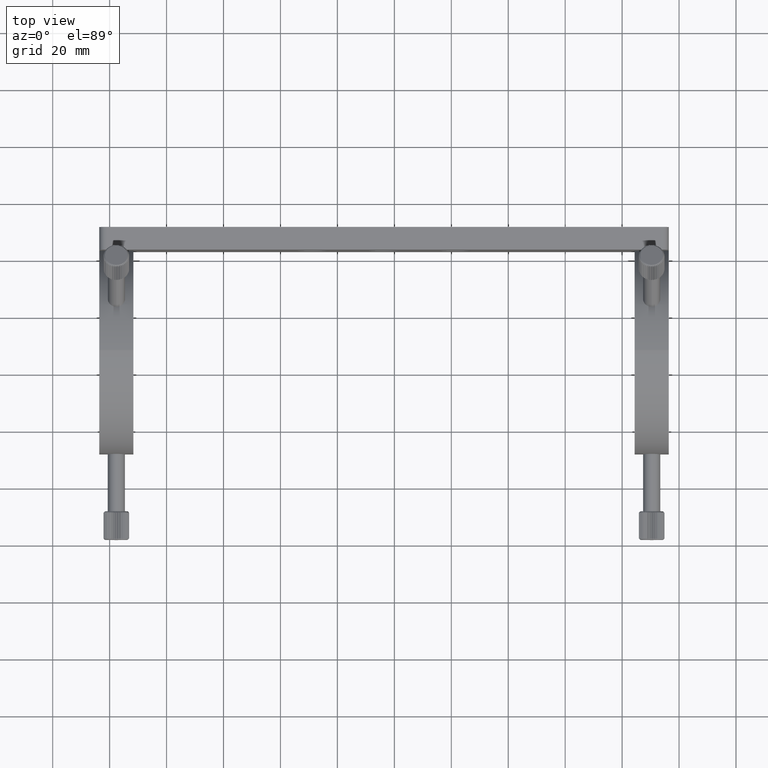
[diagram: clean part render]
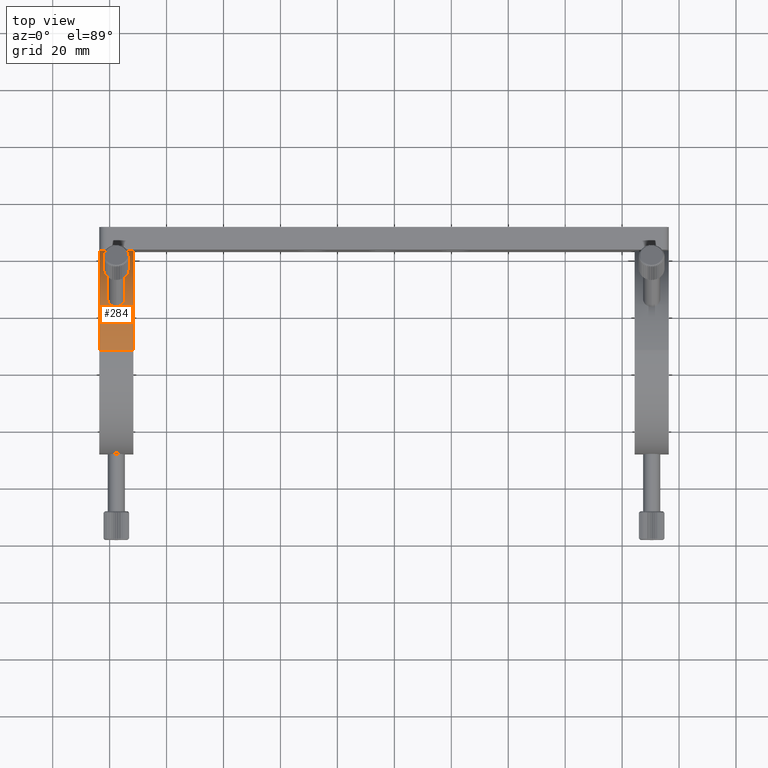
[diagram: same view with one face highlighted and labeled with its STEP entity id]
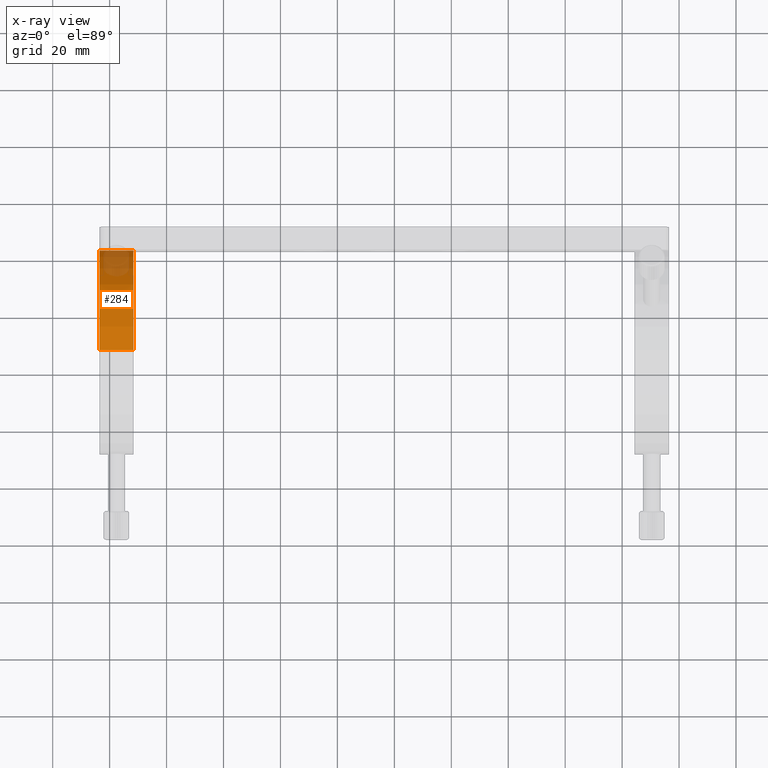
[diagram: x-ray of the same camera — body ghosted, the highlighted face saturated]
A machine part, top view. The second image highlights one B-rep face of the part: STEP entity #284.
The next image is the same camera in x-ray: the body ghosted, the highlighted face saturated — about 19% of this face is hidden behind the body in this view.
In plain terms, the highlighted cylindrical surface (partial cylindrical patch) has radius 36 mm, axis along (1, 0, 0).
Its self-contained STEP definition (entity closure, byte-faithful):
#27 = CARTESIAN_POINT ( 'NONE',  ( -99.16896891629421900, -36.67181555578088100, 32.12909060286512600 ) ) ;
#135 = CARTESIAN_POINT ( 'NONE',  ( -99.87901667800481700, -35.88279715201265000, 31.71744782722568700 ) ) ;
#284 = ADVANCED_FACE ( 'NONE', ( #27697, #623 ), #30093, .T. ) ;
#366 = CARTESIAN_POINT ( 'NONE',  ( -99.51730945327534500, -33.50189322311839400, 30.31870572878108000 ) ) ;
#472 = CARTESIAN_POINT ( 'NONE',  ( -97.96345351327534000, -32.79134963972862200, 29.85164786631104400 ) ) ;
#532 = CARTESIAN_POINT ( 'NONE',  ( -95.21313028103988100, -35.47739396892873000, 31.49645733387829000 ) ) ;
#623 = FACE_OUTER_BOUND ( 'NONE', #17009, .T. ) ;
#649 = CARTESIAN_POINT ( 'NONE',  ( -96.10885848674645600, -33.21842257860203100, 30.13525405787644500 ) ) ;
#756 = CARTESIAN_POINT ( 'NONE',  ( -95.38584691836011600, -33.96220236134243500, 30.60868353116871500 ) ) ;
#1281 = CIRCLE ( 'NONE', #18355, 36.00000000000002800 ) ;
#2262 = VERTEX_POINT ( 'NONE', #26188 ) ;
#2479 = CARTESIAN_POINT ( 'NONE',  ( -97.63306085376936500, -37.12147665865081300, 32.35164786631097700 ) ) ;
#2503 = EDGE_CURVE ( 'NONE', #32010, #2849, #26023, .T. ) ;
#2706 = CARTESIAN_POINT ( 'NONE',  ( -100.0528725425936200, -35.47765903757490200, 31.49660119721448800 ) ) ;
#2849 = VERTEX_POINT ( 'NONE', #23191 ) ;
#2937 = CARTESIAN_POINT ( 'NONE',  ( -99.80385553234168600, -33.84054108198556300, 30.53295588438157500 ) ) ;
#2998 = CARTESIAN_POINT ( 'NONE',  ( -95.46347066704218800, -33.83864005476746700, 30.53177199441088900 ) ) ;
#3113 = CARTESIAN_POINT ( 'NONE',  ( -95.26036527281650000, -35.61397444602200600, 31.57163443884389400 ) ) ;
#3150 = CARTESIAN_POINT ( 'NONE',  ( -103.6330608537693800, -17.41295791704509100, 5.979130371550706300 ) ) ;
#3624 = ORIENTED_EDGE ( 'NONE', *, *, #11283, .T. ) ;
#4146 = ORIENTED_EDGE ( 'NONE', *, *, #8931, .T. ) ;
#4505 = DIRECTION ( 'NONE',  ( -1.000000000000000000, -3.227553289772365600E-016, -6.245004513516485800E-017 ) ) ;
#4878 = AXIS2_PLACEMENT_3D ( 'NONE', #11987, #4505, #14756 ) ;
#5495 = CARTESIAN_POINT ( 'NONE',  ( -95.64622452386085200, -33.60722197214347100, 30.38597147789798600 ) ) ;
#5598 = CARTESIAN_POINT ( 'NONE',  ( -95.26117585971856300, -34.21874536891541400, 30.76603745769975300 ) ) ;
#5707 = CARTESIAN_POINT ( 'NONE',  ( -97.30536365340624600, -32.80482696407320700, 29.86074486290415200 ) ) ;
#5824 = CARTESIAN_POINT ( 'NONE',  ( -95.74969305111353900, -33.50104941048486800, 30.31816515016392100 ) ) ;
#6537 = AXIS2_PLACEMENT_3D ( 'NONE', #23517, #31302, #8452 ) ;
#7094 = EDGE_CURVE ( 'NONE', #13643, #8117, #1281, .T. ) ;
#7665 = CARTESIAN_POINT ( 'NONE',  ( -98.28077755211887700, -37.04964642817338900, 32.31650315495970500 ) ) ;
#7866 = CIRCLE ( 'NONE', #4878, 36.00000000000002800 ) ;
#8009 = CARTESIAN_POINT ( 'NONE',  ( -99.62277687329510900, -33.61050104639391400, 30.38805090367765500 ) ) ;
#8073 = CARTESIAN_POINT ( 'NONE',  ( -97.63306085376936500, -32.79134963972861500, 29.85164786631103700 ) ) ;
#8117 = VERTEX_POINT ( 'NONE', #8531 ) ;
#8297 = CARTESIAN_POINT ( 'NONE',  ( -95.98023987858182700, -33.30698435964775000, 30.19303116294083000 ) ) ;
#8347 = CARTESIAN_POINT ( 'NONE',  ( -98.88833704406852100, -33.06783110732094900, 30.03630009003354600 ) ) ;
#8411 = CARTESIAN_POINT ( 'NONE',  ( -97.46987347511429800, -37.12147665865082000, 32.35164786631098400 ) ) ;
#8452 = DIRECTION ( 'NONE',  ( 0.0000000000000000000, 5.782411586589352700E-016, 1.000000000000000000 ) ) ;
#8531 = CARTESIAN_POINT ( 'NONE',  ( -103.6330608537693800, -17.41295791704509100, 5.979130371550706300 ) ) ;
#8931 = EDGE_CURVE ( 'NONE', #2849, #32010, #17608, .T. ) ;
#9909 = CARTESIAN_POINT ( 'NONE',  ( -100.1166240872301800, -35.19874294107056300, 31.34058266493758900 ) ) ;
#10568 = CARTESIAN_POINT ( 'NONE',  ( -100.0059140575323100, -34.22098089571600400, 30.76740114733139800 ) ) ;
#10608 = VECTOR ( 'NONE', #15967, 1000.000000000000000 ) ;
#10632 = CARTESIAN_POINT ( 'NONE',  ( -95.14927122559410600, -35.19749601746829600, 31.33988073458980500 ) ) ;
#10746 = CARTESIAN_POINT ( 'NONE',  ( -95.13300255412552500, -35.05344038381137000, 31.25802680114832200 ) ) ;
#10846 = CARTESIAN_POINT ( 'NONE',  ( -95.98161942359463700, -36.56924513870474400, 32.07641986271804800 ) ) ;
#10891 = CARTESIAN_POINT ( 'NONE',  ( -98.29168566677360300, -32.84649554215096100, 29.88900737038749300 ) ) ;
#10948 = CARTESIAN_POINT ( 'NONE',  ( -97.46782652528610000, -32.79134963972861500, 29.85164786631103000 ) ) ;
#11283 = EDGE_CURVE ( 'NONE', #13643, #2262, #18261, .T. ) ;
#11889 = VECTOR ( 'NONE', #26901, 1000.000000000000000 ) ;
#11987 = CARTESIAN_POINT ( 'NONE',  ( -91.63306085376930800, -52.91295791704508400, 2.205874372052107000E-014 ) ) ;
#12288 = ORIENTED_EDGE ( 'NONE', *, *, #12867, .T. ) ;
#12867 = EDGE_CURVE ( 'NONE', #2262, #12917, #7866, .T. ) ;
#12901 = CARTESIAN_POINT ( 'NONE',  ( -99.62050461516172100, -36.25000985648898700, 31.91182611467648700 ) ) ;
#12917 = VERTEX_POINT ( 'NONE', #14553 ) ;
#13119 = CARTESIAN_POINT ( 'NONE',  ( -97.63306085376936500, -32.79134963972861500, 29.85164786631103700 ) ) ;
#13280 = CARTESIAN_POINT ( 'NONE',  ( -97.63306085376936500, -32.79134963972861500, 29.85164786631103700 ) ) ;
#13405 = CARTESIAN_POINT ( 'NONE',  ( -96.52490453753335900, -36.89395757773764500, 32.23965849932099600 ) ) ;
#13643 = VERTEX_POINT ( 'NONE', #23145 ) ;
#14051 = EDGE_CURVE ( 'NONE', #8117, #12917, #17364, .T. ) ;
#14553 = CARTESIAN_POINT ( 'NONE',  ( -91.63306085376933700, -17.41295791704509100, 5.979130371550706300 ) ) ;
#14756 = DIRECTION ( 'NONE',  ( 0.0000000000000000000, -5.782411586589352700E-016, -1.000000000000000000 ) ) ;
#14852 = CARTESIAN_POINT ( 'NONE',  ( -103.6330608537693500, -52.91295791704508400, 2.130934317889909500E-014 ) ) ;
#15420 = CARTESIAN_POINT ( 'NONE',  ( -99.80216785852489600, -36.00945497203398600, 31.78506051952929900 ) ) ;
#15597 = CARTESIAN_POINT ( 'NONE',  ( -96.98575108784689300, -32.85768925019051100, 29.89627423090716400 ) ) ;
#15818 = CARTESIAN_POINT ( 'NONE',  ( -95.14898694847013900, -34.63095898881248000, 31.01281290807241200 ) ) ;
#15926 = CARTESIAN_POINT ( 'NONE',  ( -96.82782310726445000, -37.00665215671006800, 32.29540817333487000 ) ) ;
#15967 = DIRECTION ( 'NONE',  ( 1.000000000000000000, 3.227553289772365600E-016, 6.245004513516485800E-017 ) ) ;
#17009 = EDGE_LOOP ( 'NONE', ( #27290, #3624, #12288, #32717 ) ) ;
#17364 = LINE ( 'NONE', #3150, #10608 ) ;
#17608 = B_SPLINE_CURVE_WITH_KNOTS ( 'NONE', 3,
 ( #2479, #30631, #22876, #7665, #27958, #30521, #27, #25526, #12901, #15420, #135, #17983, #2706, #9909, #27624, #25752, #31203, #25983, #10568, #30740, #2937, #8009, #366, #28282, #20763, #8347, #30973, #10891, #472, #13119 ),
 .UNSPECIFIED., .F., .F.,
 ( 4, 2, 2, 2, 2, 2, 2, 2, 2, 2, 2, 2, 2, 2, 4 ),
 ( 0.007818491499208053700, 0.008307034842368773300, 0.008795578185529494600, 0.009772664871850935500, 0.01026120821501166700, 0.01074975155817239900, 0.01123829490133313100, 0.01172683824449386300, 0.01221538158765459900, 0.01270392493081533600, 0.01319246827397607300, 0.01368101161713681000, 0.01416955496029754700, 0.01465809830345828400, 0.01563518498977975100 ),
 .UNSPECIFIED. ) ;
#17983 = CARTESIAN_POINT ( 'NONE',  ( -100.0046103626336600, -35.61691279601091500, 31.57324334823369200 ) ) ;
#18166 = CARTESIAN_POINT ( 'NONE',  ( -96.82694170118404000, -32.89771986078978500, 29.92313822348242200 ) ) ;
#18261 = LINE ( 'NONE', #26460, #11889 ) ;
#18280 = CARTESIAN_POINT ( 'NONE',  ( -96.38059782745244800, -33.06652358878520200, 30.03543413676600300 ) ) ;
#18355 = AXIS2_PLACEMENT_3D ( 'NONE', #14852, #20296, #25066 ) ;
#18399 = CARTESIAN_POINT ( 'NONE',  ( -95.46392829532396700, -36.00935516545128900, 31.78500563921533800 ) ) ;
#18466 = EDGE_LOOP ( 'NONE', ( #32159, #4146 ) ) ;
#18504 = CARTESIAN_POINT ( 'NONE',  ( -96.37875918298972500, -36.82373863542553500, 32.20473947561625700 ) ) ;
#20296 = DIRECTION ( 'NONE',  ( -1.000000000000000000, -3.227553289772365600E-016, -6.245004513516485800E-017 ) ) ;
#20763 = CARTESIAN_POINT ( 'NONE',  ( -99.16112501161325100, -33.22085283989831300, 30.13684420809833900 ) ) ;
#21050 = CARTESIAN_POINT ( 'NONE',  ( -97.30412878836934000, -37.10673904766264300, 32.34446585919190700 ) ) ;
#22876 = CARTESIAN_POINT ( 'NONE',  ( -97.95839240472335500, -37.10722280869382700, 32.34470227474852100 ) ) ;
#23145 = CARTESIAN_POINT ( 'NONE',  ( -103.6330608537693500, -52.91295791704506300, 36.00000000000002100 ) ) ;
#23191 = CARTESIAN_POINT ( 'NONE',  ( -97.63306085376936500, -37.12147665865081300, 32.35164786631097700 ) ) ;
#23373 = CARTESIAN_POINT ( 'NONE',  ( -95.21317905527075700, -34.35362154839019400, 30.84764306779570500 ) ) ;
#23474 = CARTESIAN_POINT ( 'NONE',  ( -96.52418342854207400, -33.00239563072484100, 29.99289024140166800 ) ) ;
#23517 = CARTESIAN_POINT ( 'NONE',  ( -103.6330608537693500, -52.91295791704508400, 2.130934317889909500E-014 ) ) ;
#23585 = CARTESIAN_POINT ( 'NONE',  ( -96.98368462895145100, -37.04918813631184800, 32.31627817381122000 ) ) ;
#25066 = DIRECTION ( 'NONE',  ( 0.0000000000000000000, -5.782411586589352700E-016, -1.000000000000000000 ) ) ;
#25526 = CARTESIAN_POINT ( 'NONE',  ( -99.51490676417687100, -36.36414438613246600, 31.97108166391272000 ) ) ;
#25706 = CARTESIAN_POINT ( 'NONE',  ( -95.64492678151469800, -36.24916146900055500, 31.91138131461530100 ) ) ;
#25752 = CARTESIAN_POINT ( 'NONE',  ( -100.1331932347009100, -34.77182285998227900, 31.09544078834996500 ) ) ;
#25937 = CARTESIAN_POINT ( 'NONE',  ( -95.13311947454315000, -34.77092353544661300, 31.09490624713456000 ) ) ;
#25983 = CARTESIAN_POINT ( 'NONE',  ( -100.0537911953454100, -34.35670746005547500, 30.84949106683807000 ) ) ;
#26023 = B_SPLINE_CURVE_WITH_KNOTS ( 'NONE', 3,
 ( #8073, #10948, #5707, #15597, #18166, #23474, #18280, #649, #8297, #5824, #5495, #2998, #756, #5598, #23373, #15818, #25937, #10746, #10632, #532, #3113, #28686, #18399, #25706, #26044, #10846, #28568, #18504, #13405, #15926, #23585, #21050, #8411, #26163 ),
 .UNSPECIFIED., .F., .F.,
 ( 4, 2, 2, 2, 2, 2, 2, 2, 2, 2, 2, 2, 2, 2, 2, 2, 4 ),
 ( 0.0000000000000000000, 0.0004886557187005033600, 0.0009773114374010067100, 0.001465967156101510100, 0.001954622874802013400, 0.002443278593502516800, 0.002931934312203020100, 0.003420590030903523500, 0.003909245749604026800, 0.004397901468304529800, 0.004886557187005033600, 0.005375212905705537400, 0.005863868624406040300, 0.006352524343106543200, 0.006841180061807047000, 0.007329835780507550800, 0.007818491499208053700 ),
 .UNSPECIFIED. ) ;
#26044 = CARTESIAN_POINT ( 'NONE',  ( -95.74825547982625600, -36.36132680847917700, 31.96962880979714700 ) ) ;
#26163 = CARTESIAN_POINT ( 'NONE',  ( -97.63306085376936500, -37.12147665865081300, 32.35164786631097700 ) ) ;
#26188 = CARTESIAN_POINT ( 'NONE',  ( -91.63306085376930800, -52.91295791704506300, 36.00000000000002100 ) ) ;
#26460 = CARTESIAN_POINT ( 'NONE',  ( -103.6330608537693500, -52.91295791704506300, 36.00000000000005000 ) ) ;
#26901 = DIRECTION ( 'NONE',  ( 1.000000000000000000, 3.227553289772365600E-016, 6.245004513516485800E-017 ) ) ;
#27290 = ORIENTED_EDGE ( 'NONE', *, *, #7094, .F. ) ;
#27624 = CARTESIAN_POINT ( 'NONE',  ( -100.1329268433611500, -35.05758889586698500, 31.26040652483463900 ) ) ;
#27697 = FACE_BOUND ( 'NONE', #18466, .T. ) ;
#27958 = CARTESIAN_POINT ( 'NONE',  ( -98.43871538112627200, -37.00645549277718500, 32.29531039454045100 ) ) ;
#28282 = CARTESIAN_POINT ( 'NONE',  ( -99.28683102995518100, -33.30768177520798200, 30.19348434716572900 ) ) ;
#28568 = CARTESIAN_POINT ( 'NONE',  ( -96.10801603746097000, -36.66171411695880500, 32.12328278265643900 ) ) ;
#28686 = CARTESIAN_POINT ( 'NONE',  ( -95.38563308921099800, -35.88018254262294000, 31.71604472999749900 ) ) ;
#30093 = CYLINDRICAL_SURFACE ( 'NONE', #6537, 36.00000000000002800 ) ;
#30521 = CARTESIAN_POINT ( 'NONE',  ( -98.89001530208922500, -36.83868328126468600, 32.21231544526586500 ) ) ;
#30631 = CARTESIAN_POINT ( 'NONE',  ( -97.79621070442870200, -37.12147665865081300, 32.35164786631099100 ) ) ;
#30740 = CARTESIAN_POINT ( 'NONE',  ( -99.88055698480540900, -33.96254227929358600, 30.60889944906819700 ) ) ;
#30973 = CARTESIAN_POINT ( 'NONE',  ( -98.74269376745368700, -33.00277264890667100, 29.99313989974932000 ) ) ;
#31203 = CARTESIAN_POINT ( 'NONE',  ( -100.1170722312147600, -34.63127623646756300, 31.01299155250079700 ) ) ;
#31302 = DIRECTION ( 'NONE',  ( 1.000000000000000000, 3.227553289772365600E-016, 6.245004513516485800E-017 ) ) ;
#32010 = VERTEX_POINT ( 'NONE', #13280 ) ;
#32159 = ORIENTED_EDGE ( 'NONE', *, *, #2503, .T. ) ;
#32717 = ORIENTED_EDGE ( 'NONE', *, *, #14051, .F. ) ;